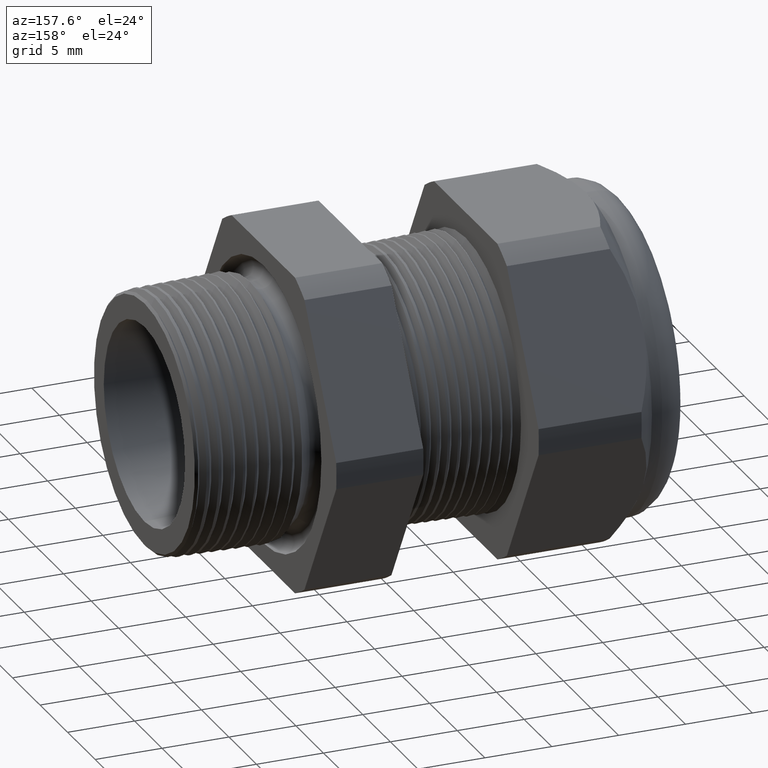
[diagram: clean part render]
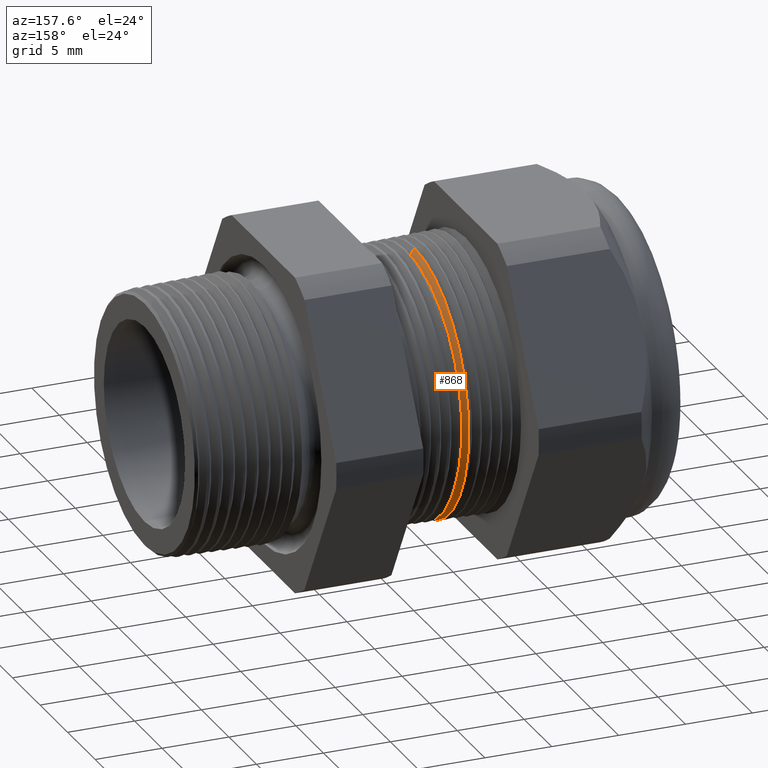
[diagram: same view with one face highlighted and labeled with its STEP entity id]
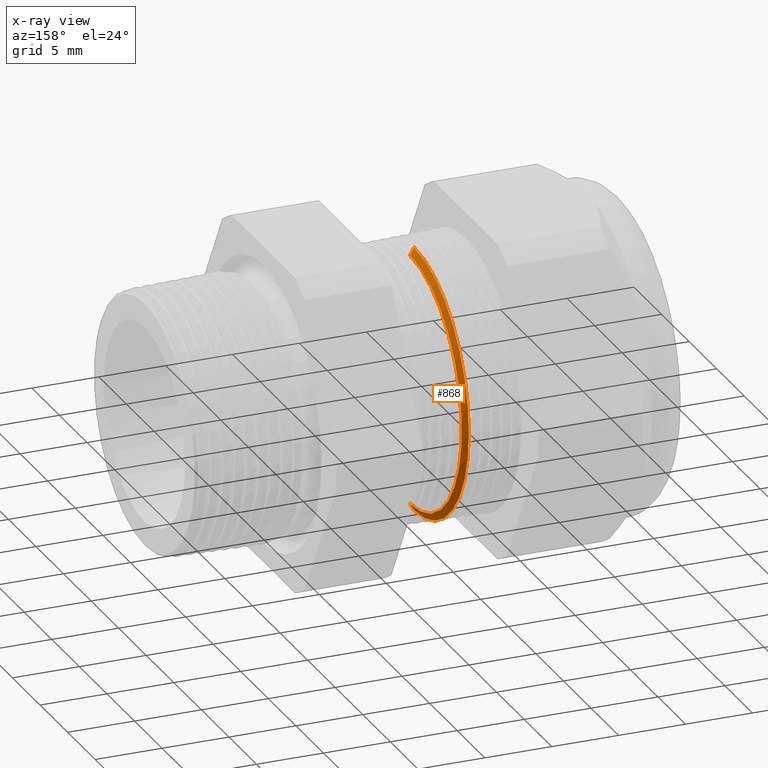
[diagram: x-ray of the same camera — body ghosted, the highlighted face saturated]
A machine part, auxiliary view. The second image highlights one B-rep face of the part: STEP entity #868.
The next image is the same camera in x-ray: the body ghosted, the highlighted face saturated — about 2% of this face is hidden behind the body in this view.
In plain terms, the highlighted conical surface has half-angle 61.5 deg.
Its self-contained STEP definition (entity closure, byte-faithful):
#645 = EDGE_CURVE ( 'NONE', #650, #648, #2762, .T. ) ;
#648 = VERTEX_POINT ( 'NONE', #2809 ) ;
#650 = VERTEX_POINT ( 'NONE', #2808 ) ;
#791 = ORIENTED_EDGE ( 'NONE', *, *, #645, .F. ) ;
#851 = EDGE_CURVE ( 'NONE', #650, #853, #3148, .T. ) ;
#853 = VERTEX_POINT ( 'NONE', #3140 ) ;
#857 = ORIENTED_EDGE ( 'NONE', *, *, #851, .T. ) ;
#858 = VERTEX_POINT ( 'NONE', #3133 ) ;
#859 = ORIENTED_EDGE ( 'NONE', *, *, #860, .T. ) ;
#860 = EDGE_CURVE ( 'NONE', #853, #858, #3132, .T. ) ;
#862 = ORIENTED_EDGE ( 'NONE', *, *, #863, .F. ) ;
#863 = EDGE_CURVE ( 'NONE', #648, #858, #3127, .T. ) ;
#865 = EDGE_LOOP ( 'NONE', ( #791, #857, #859, #862 ) ) ;
#868 = ADVANCED_FACE ( 'NONE', ( #3180 ), #3179, .T. ) ;
#2749 = DIRECTION ( 'NONE',  ( 0.0000000000000000000, 0.0000000000000000000, -1.000000000000000000 ) ) ;
#2750 = DIRECTION ( 'NONE',  ( 1.000000000000000000, 0.0000000000000000000, 0.0000000000000000000 ) ) ;
#2761 = AXIS2_PLACEMENT_3D ( 'NONE', #2764, #2750, #2749 ) ;
#2762 = CIRCLE ( 'NONE', #2761, 0.3696307351718083900 ) ;
#2764 = CARTESIAN_POINT ( 'NONE',  ( -0.7416586839320377100, 0.0000000000000000000, 0.0000000000000000000 ) ) ;
#2808 = CARTESIAN_POINT ( 'NONE',  ( -0.7416586839320377100, 4.657614643428048400E-017, -0.3696307351718083900 ) ) ;
#2809 = CARTESIAN_POINT ( 'NONE',  ( -0.7416586839320377100, 0.0000000000000000000, 0.3696307351718083900 ) ) ;
#3124 = DIRECTION ( 'NONE',  ( -0.4771587602596235600, 0.0000000000000000000, 0.8788171126619570600 ) ) ;
#3125 = VECTOR ( 'NONE', #3124, 39.37007874015748900 ) ;
#3126 = CARTESIAN_POINT ( 'NONE',  ( -0.7554330708661418600, 0.0000000000000000000, 0.3950000000000000200 ) ) ;
#3127 = LINE ( 'NONE', #3126, #3125 ) ;
#3128 = DIRECTION ( 'NONE',  ( 0.0000000000000000000, 0.0000000000000000000, 1.000000000000000000 ) ) ;
#3129 = DIRECTION ( 'NONE',  ( 1.000000000000000000, 0.0000000000000000000, 0.0000000000000000000 ) ) ;
#3130 = CARTESIAN_POINT ( 'NONE',  ( -0.7532696423776623600, 0.0000000000000000000, 0.0000000000000000000 ) ) ;
#3131 = AXIS2_PLACEMENT_3D ( 'NONE', #3130, #3129, #3128 ) ;
#3132 = CIRCLE ( 'NONE', #3131, 0.3910154603959032400 ) ;
#3133 = CARTESIAN_POINT ( 'NONE',  ( -0.7532696423776623600, 0.0000000000000000000, 0.3910154603959032400 ) ) ;
#3140 = CARTESIAN_POINT ( 'NONE',  ( -0.7532696423776623600, 4.789392262317096300E-017, -0.3910154603959032400 ) ) ;
#3141 = DIRECTION ( 'NONE',  ( -0.4771587602596235600, 1.076240564057384600E-016, -0.8788171126619570600 ) ) ;
#3142 = VECTOR ( 'NONE', #3141, 39.37007874015748900 ) ;
#3143 = CARTESIAN_POINT ( 'NONE',  ( -0.7554330708661418600, 4.837354856632045600E-017, -0.3950000000000000200 ) ) ;
#3148 = LINE ( 'NONE', #3143, #3142 ) ;
#3175 = DIRECTION ( 'NONE',  ( 0.0000000000000000000, 0.0000000000000000000, 1.000000000000000000 ) ) ;
#3176 = DIRECTION ( 'NONE',  ( -1.000000000000000000, 0.0000000000000000000, 0.0000000000000000000 ) ) ;
#3177 = CARTESIAN_POINT ( 'NONE',  ( -0.7554330708661418600, 0.0000000000000000000, 0.0000000000000000000 ) ) ;
#3178 = AXIS2_PLACEMENT_3D ( 'NONE', #3177, #3176, #3175 ) ;
#3179 = CONICAL_SURFACE ( 'NONE', #3178, 0.3950000000000000200, 1.073377489976495400 ) ;
#3180 = FACE_OUTER_BOUND ( 'NONE', #865, .T. ) ;